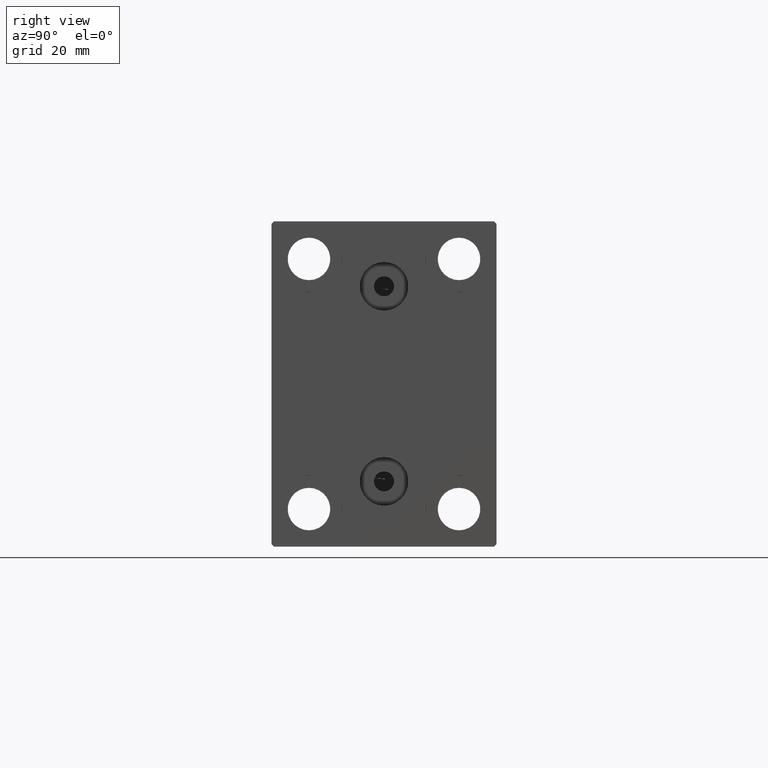
[diagram: clean part render]
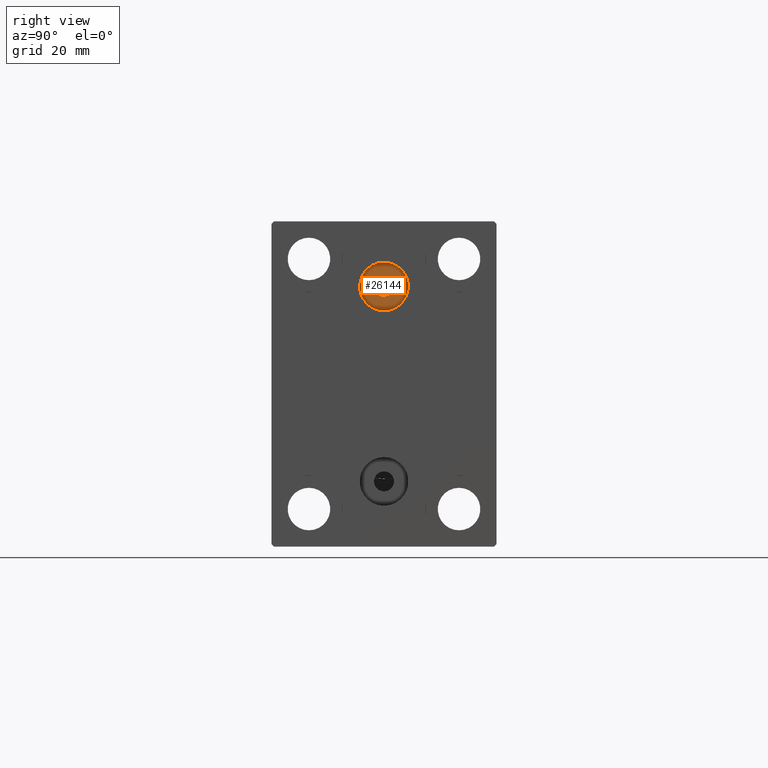
[diagram: same view with one face highlighted and labeled with its STEP entity id]
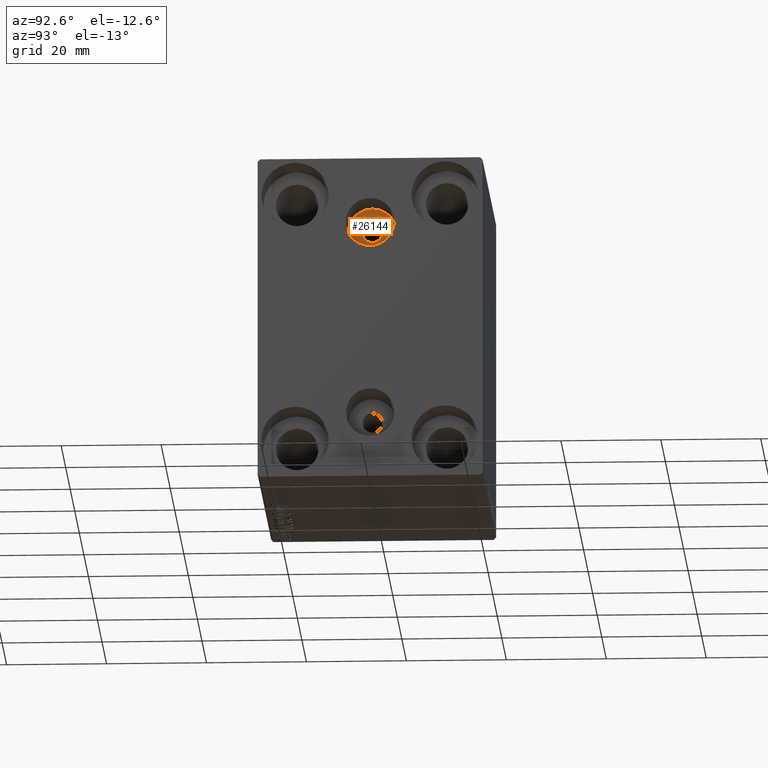
[diagram: same view with one face highlighted and labeled with its STEP entity id]
A machine part, right view. The second image highlights one B-rep face of the part: STEP entity #26144.
A second angle (auxiliary view) of the same face is appended — the face is thin or edge-on in the first view.
In plain terms, the highlighted planar face has unit normal (1, 0, 0).
Its self-contained STEP definition (entity closure, byte-faithful):
#460 = ORIENTED_EDGE ( 'NONE', *, *, #7835, .F. ) ;
#1333 = EDGE_CURVE ( 'NONE', #30754, #8401, #17081, .T. ) ;
#2676 = PLANE ( 'NONE',  #10858 ) ;
#5098 = DIRECTION ( 'NONE',  ( 1.000000000000000000, 0.000000000000000000, 0.000000000000000000 ) ) ;
#7291 = DIRECTION ( 'NONE',  ( 0.000000000000000000, 0.000000000000000000, -1.000000000000000000 ) ) ;
#7835 = EDGE_CURVE ( 'NONE', #11662, #30572, #38968, .T. ) ;
#8401 = VERTEX_POINT ( 'NONE', #20811 ) ;
#8646 = DIRECTION ( 'NONE',  ( 0.000000000000000000, 0.000000000000000000, -1.000000000000000000 ) ) ;
#10858 = AXIS2_PLACEMENT_3D ( 'NONE', #19725, #5098, #46044 ) ;
#11048 = CARTESIAN_POINT ( 'NONE',  ( 49.99999999999999289, -3.571693674697836683E-15, 17.50000000000000000 ) ) ;
#11662 = VERTEX_POINT ( 'NONE', #31038 ) ;
#12184 = CARTESIAN_POINT ( 'NONE',  ( 49.99999999999999289, -3.571693674697836683E-15, 19.50000000000000355 ) ) ;
#13210 = ORIENTED_EDGE ( 'NONE', *, *, #43039, .F. ) ;
#13773 = FACE_BOUND ( 'NONE', #38011, .T. ) ;
#17081 = CIRCLE ( 'NONE', #35863, 4.859999999999999432 ) ;
#17802 = ORIENTED_EDGE ( 'NONE', *, *, #1333, .T. ) ;
#18573 = EDGE_CURVE ( 'NONE', #8401, #30754, #46041, .T. ) ;
#18842 = DIRECTION ( 'NONE',  ( 1.000000000000000000, 0.000000000000000000, 0.000000000000000000 ) ) ;
#19042 = CIRCLE ( 'NONE', #45381, 2.000000000000001776 ) ;
#19725 = CARTESIAN_POINT ( 'NONE',  ( 49.99999999999999289, -3.571693674697836683E-15, 19.50000000000000355 ) ) ;
#20811 = CARTESIAN_POINT ( 'NONE',  ( 49.99999999999999289, -3.571693674697836683E-15, 14.64000000000000412 ) ) ;
#21372 = CARTESIAN_POINT ( 'NONE',  ( 49.99999999999999289, -2.976515330312223406E-15, 24.36000000000000298 ) ) ;
#22359 = DIRECTION ( 'NONE',  ( 1.000000000000000000, 0.000000000000000000, 0.000000000000000000 ) ) ;
#25199 = CARTESIAN_POINT ( 'NONE',  ( 49.99999999999999289, -3.571693674697836683E-15, 19.50000000000000355 ) ) ;
#26144 = ADVANCED_FACE ( 'NONE', ( #13773, #34965 ), #2676, .T. ) ;
#30075 = DIRECTION ( 'NONE',  ( 1.000000000000000000, 0.000000000000000000, 0.000000000000000000 ) ) ;
#30572 = VERTEX_POINT ( 'NONE', #11048 ) ;
#30754 = VERTEX_POINT ( 'NONE', #21372 ) ;
#31038 = CARTESIAN_POINT ( 'NONE',  ( 49.99999999999999289, -3.326764314868365993E-15, 21.50000000000000355 ) ) ;
#31279 = ORIENTED_EDGE ( 'NONE', *, *, #18573, .T. ) ;
#31732 = AXIS2_PLACEMENT_3D ( 'NONE', #12184, #30075, #8646 ) ;
#31763 = DIRECTION ( 'NONE',  ( 1.000000000000000000, 0.000000000000000000, 0.000000000000000000 ) ) ;
#34965 = FACE_OUTER_BOUND ( 'NONE', #35027, .T. ) ;
#35027 = EDGE_LOOP ( 'NONE', ( #31279, #17802 ) ) ;
#35074 = DIRECTION ( 'NONE',  ( 0.000000000000000000, 0.000000000000000000, -1.000000000000000000 ) ) ;
#35863 = AXIS2_PLACEMENT_3D ( 'NONE', #39799, #22359, #44056 ) ;
#38011 = EDGE_LOOP ( 'NONE', ( #13210, #460 ) ) ;
#38968 = CIRCLE ( 'NONE', #40441, 2.000000000000001776 ) ;
#39799 = CARTESIAN_POINT ( 'NONE',  ( 49.99999999999999289, -3.571693674697836683E-15, 19.50000000000000355 ) ) ;
#40441 = AXIS2_PLACEMENT_3D ( 'NONE', #46377, #31763, #35074 ) ;
#43039 = EDGE_CURVE ( 'NONE', #30572, #11662, #19042, .T. ) ;
#44056 = DIRECTION ( 'NONE',  ( 0.000000000000000000, 0.000000000000000000, -1.000000000000000000 ) ) ;
#45381 = AXIS2_PLACEMENT_3D ( 'NONE', #25199, #18842, #7291 ) ;
#46041 = CIRCLE ( 'NONE', #31732, 4.859999999999999432 ) ;
#46044 = DIRECTION ( 'NONE',  ( 0.000000000000000000, 0.000000000000000000, -1.000000000000000000 ) ) ;
#46377 = CARTESIAN_POINT ( 'NONE',  ( 49.99999999999999289, -3.571693674697836683E-15, 19.50000000000000355 ) ) ;